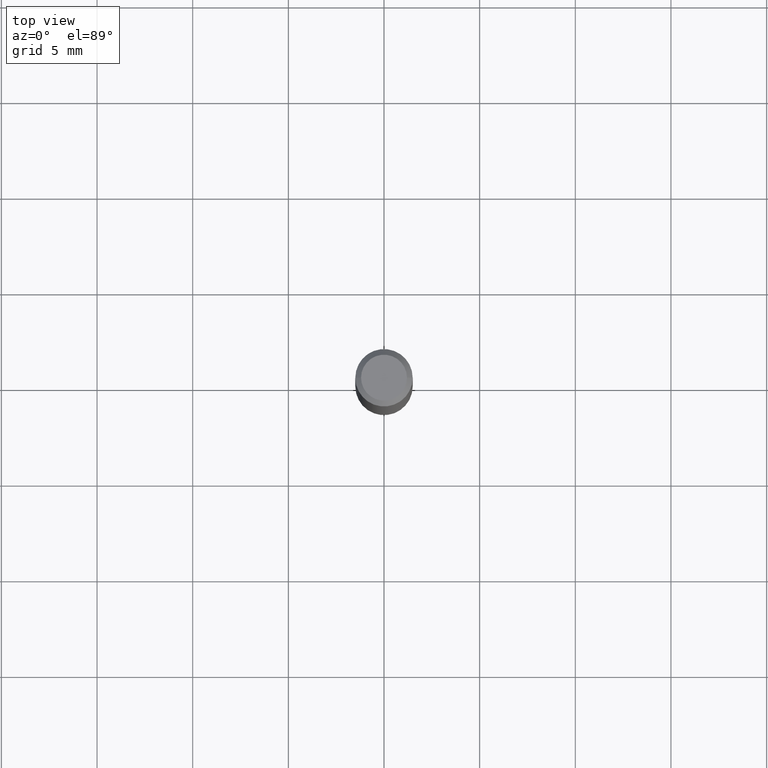
[diagram: clean part render]
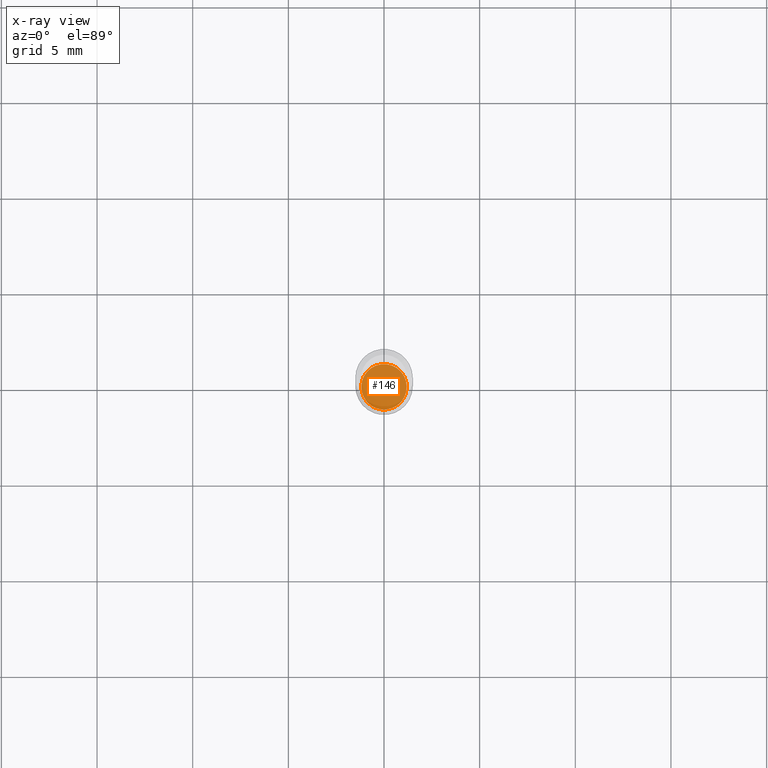
[diagram: x-ray — body ghosted, one internal face saturated and labeled with its STEP entity id]
A machine part, top view, then the same camera in x-ray: the body is ghosted and one INTERNAL B-rep face — a face not visible from any outside direction — is saturated and labeled: STEP entity #146.
In plain terms, the highlighted planar face has unit normal (-0, 0, 1).
Its self-contained STEP definition (entity closure, byte-faithful):
#1 = DIRECTION ( 'NONE',  ( 1.000000000000000000, -6.982962677686266711E-15, 0.000000000000000000 ) ) ;
#21 = EDGE_CURVE ( 'NONE', #390, #95, #255, .T. ) ;
#25 = CARTESIAN_POINT ( 'NONE',  ( 2.676565608369631794E-29, -3.821426325363822773E-15, -1.094499999999999806 ) ) ;
#27 = EDGE_LOOP ( 'NONE', ( #424, #52 ) ) ;
#36 = CARTESIAN_POINT ( 'NONE',  ( 0.04674999999999999295, -4.147879830545655774E-15, -1.094499999999999806 ) ) ;
#45 = CARTESIAN_POINT ( 'NONE',  ( 2.676565608369631794E-29, -3.821426325363822773E-15, -1.094499999999999806 ) ) ;
#52 = ORIENTED_EDGE ( 'NONE', *, *, #21, .F. ) ;
#59 = CARTESIAN_POINT ( 'NONE',  ( 2.676565608369631794E-29, -3.821426325363822773E-15, -1.094499999999999806 ) ) ;
#63 = AXIS2_PLACEMENT_3D ( 'NONE', #25, #402, #437 ) ;
#95 = VERTEX_POINT ( 'NONE', #36 ) ;
#146 = ADVANCED_FACE ( 'NONE', ( #241 ), #234, .F. ) ;
#212 = DIRECTION ( 'NONE',  ( -2.445468806185136597E-29, 3.491481338843145583E-15, 1.000000000000000000 ) ) ;
#234 = PLANE ( 'NONE',  #422 ) ;
#241 = FACE_OUTER_BOUND ( 'NONE', #27, .T. ) ;
#255 = CIRCLE ( 'NONE', #298, 0.04674999999999999295 ) ;
#270 = DIRECTION ( 'NONE',  ( 1.000000000000000000, -6.982962677686265922E-15, 4.876176775795935793E-29 ) ) ;
#298 = AXIS2_PLACEMENT_3D ( 'NONE', #59, #212, #1 ) ;
#337 = CIRCLE ( 'NONE', #63, 0.04674999999999999295 ) ;
#360 = EDGE_CURVE ( 'NONE', #95, #390, #337, .T. ) ;
#384 = CARTESIAN_POINT ( 'NONE',  ( -0.04674999999999999295, -3.486598369221864243E-15, -1.094499999999999806 ) ) ;
#390 = VERTEX_POINT ( 'NONE', #384 ) ;
#402 = DIRECTION ( 'NONE',  ( -2.445468806185136597E-29, 3.491481338843145583E-15, 1.000000000000000000 ) ) ;
#422 = AXIS2_PLACEMENT_3D ( 'NONE', #45, #467, #270 ) ;
#424 = ORIENTED_EDGE ( 'NONE', *, *, #360, .F. ) ;
#437 = DIRECTION ( 'NONE',  ( 1.000000000000000000, -6.982962677686266711E-15, 0.000000000000000000 ) ) ;
#467 = DIRECTION ( 'NONE',  ( -2.438088387897960049E-29, 3.491481338843145188E-15, 1.000000000000000000 ) ) ;